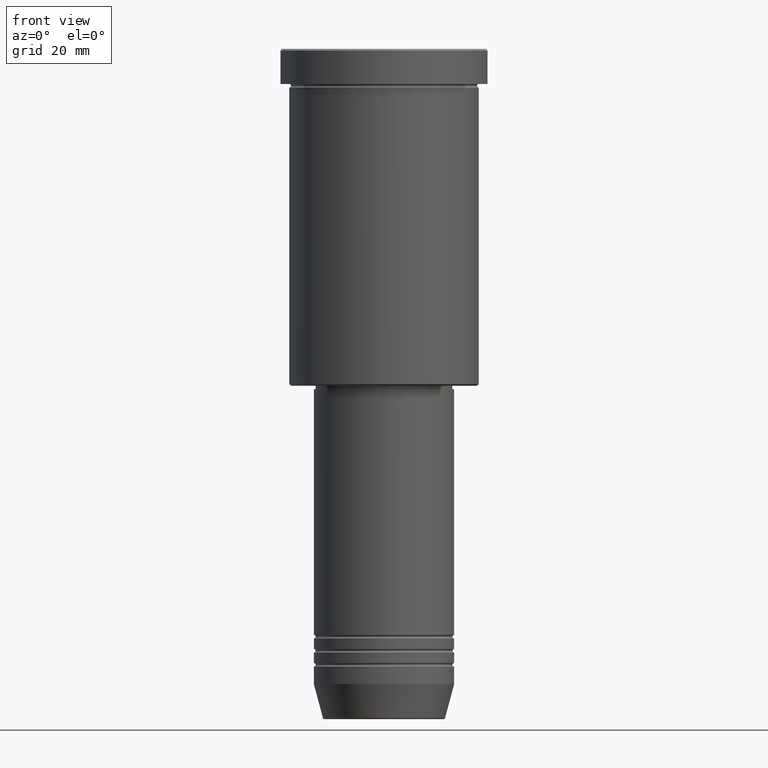
[diagram: clean part render]
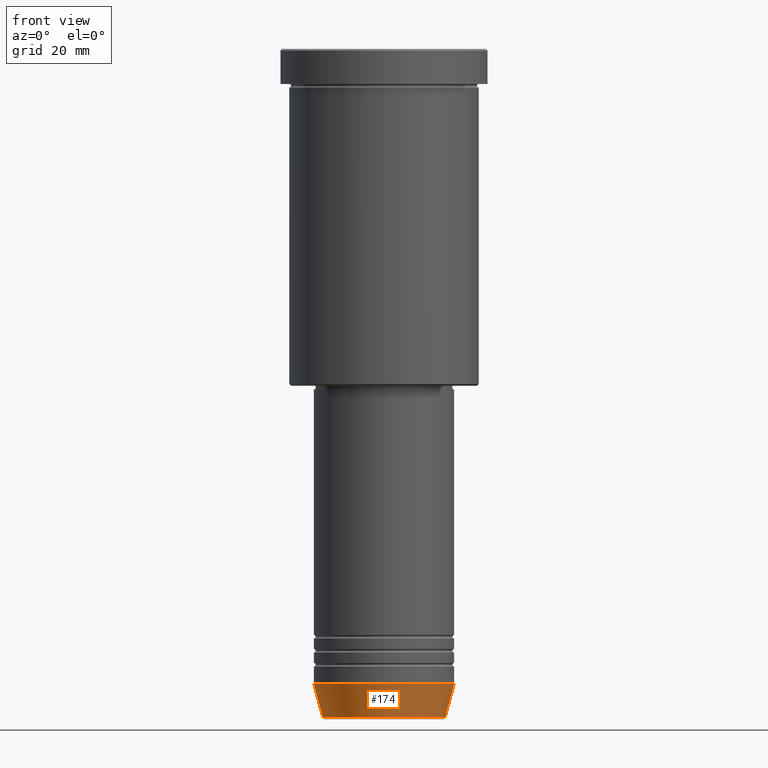
[diagram: same view with one face highlighted and labeled with its STEP entity id]
A machine part, front view. The second image highlights one B-rep face of the part: STEP entity #174.
In plain terms, the highlighted conical surface has half-angle 15 deg.
Its self-contained STEP definition (entity closure, byte-faithful):
#31 = EDGE_LOOP ( 'NONE', ( #731, #635, #197, #923 ) ) ;
#68 = CARTESIAN_POINT ( 'NONE',  ( 20.00000000000000000, 0.000000000000000000, -181.0000000000000000 ) ) ;
#90 = VECTOR ( 'NONE', #933, 1000.000000000000114 ) ;
#99 = EDGE_CURVE ( 'NONE', #193, #423, #425, .T. ) ;
#120 = CARTESIAN_POINT ( 'NONE',  ( -20.00000000000000000, 2.449293598294706513E-15, -181.0000000000000000 ) ) ;
#174 = ADVANCED_FACE ( 'NONE', ( #808 ), #209, .T. ) ;
#193 = VERTEX_POINT ( 'NONE', #266 ) ;
#194 = LINE ( 'NONE', #120, #90 ) ;
#197 = ORIENTED_EDGE ( 'NONE', *, *, #249, .T. ) ;
#209 = CONICAL_SURFACE ( 'NONE', #913, 20.00000000000000000, 0.2617993877991499074 ) ;
#219 = CARTESIAN_POINT ( 'NONE',  ( 0.000000000000000000, 0.000000000000000000, -181.0000000000000000 ) ) ;
#249 = EDGE_CURVE ( 'NONE', #423, #657, #847, .T. ) ;
#251 = EDGE_CURVE ( 'NONE', #193, #378, #194, .T. ) ;
#266 = CARTESIAN_POINT ( 'NONE',  ( -17.41980749484382329, 2.291302373663531915E-15, -190.6294095225512422 ) ) ;
#378 = VERTEX_POINT ( 'NONE', #566 ) ;
#398 = DIRECTION ( 'NONE',  ( 1.000000000000000000, 0.000000000000000000, 0.000000000000000000 ) ) ;
#423 = VERTEX_POINT ( 'NONE', #674 ) ;
#425 = CIRCLE ( 'NONE', #1012, 17.41980749484382329 ) ;
#442 = DIRECTION ( 'NONE',  ( -0.000000000000000000, -0.000000000000000000, 1.000000000000000000 ) ) ;
#529 = AXIS2_PLACEMENT_3D ( 'NONE', #219, #605, #398 ) ;
#562 = CARTESIAN_POINT ( 'NONE',  ( 20.00000000000000000, 0.000000000000000000, -181.0000000000000000 ) ) ;
#566 = CARTESIAN_POINT ( 'NONE',  ( -20.00000000000000000, 2.449293598294706513E-15, -181.0000000000000000 ) ) ;
#571 = DIRECTION ( 'NONE',  ( 1.000000000000000000, 0.000000000000000000, 0.000000000000000000 ) ) ;
#602 = EDGE_CURVE ( 'NONE', #378, #657, #956, .T. ) ;
#605 = DIRECTION ( 'NONE',  ( -0.000000000000000000, -0.000000000000000000, 1.000000000000000000 ) ) ;
#635 = ORIENTED_EDGE ( 'NONE', *, *, #99, .T. ) ;
#657 = VERTEX_POINT ( 'NONE', #68 ) ;
#674 = CARTESIAN_POINT ( 'NONE',  ( 17.41980749484382329, 0.000000000000000000, -190.6294095225512422 ) ) ;
#731 = ORIENTED_EDGE ( 'NONE', *, *, #251, .F. ) ;
#808 = FACE_OUTER_BOUND ( 'NONE', #31, .T. ) ;
#811 = DIRECTION ( 'NONE',  ( 1.000000000000000000, 0.000000000000000000, 0.000000000000000000 ) ) ;
#840 = VECTOR ( 'NONE', #1021, 1000.000000000000114 ) ;
#847 = LINE ( 'NONE', #562, #840 ) ;
#913 = AXIS2_PLACEMENT_3D ( 'NONE', #1097, #442, #811 ) ;
#923 = ORIENTED_EDGE ( 'NONE', *, *, #602, .F. ) ;
#933 = DIRECTION ( 'NONE',  ( -0.2588190451025211836, 3.169619151431770488E-17, 0.9659258262890680902 ) ) ;
#956 = CIRCLE ( 'NONE', #529, 20.00000000000000000 ) ;
#1012 = AXIS2_PLACEMENT_3D ( 'NONE', #1160, #1075, #571 ) ;
#1021 = DIRECTION ( 'NONE',  ( 0.2588190451025211836, 0.000000000000000000, 0.9659258262890680902 ) ) ;
#1075 = DIRECTION ( 'NONE',  ( -0.000000000000000000, -0.000000000000000000, 1.000000000000000000 ) ) ;
#1097 = CARTESIAN_POINT ( 'NONE',  ( 0.000000000000000000, 0.000000000000000000, -181.0000000000000000 ) ) ;
#1160 = CARTESIAN_POINT ( 'NONE',  ( 0.000000000000000000, 0.000000000000000000, -190.6294095225512422 ) ) ;